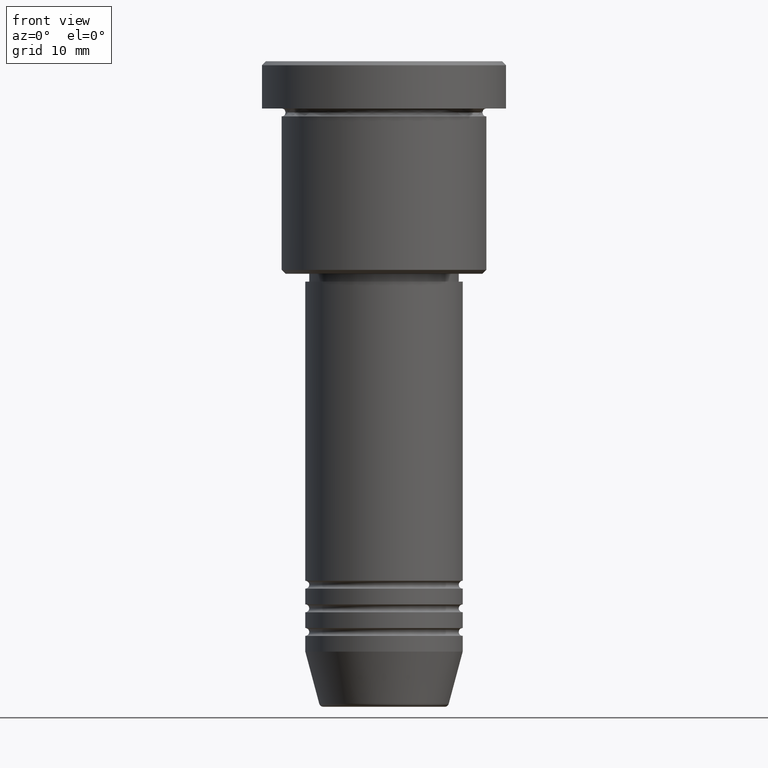
[diagram: clean part render]
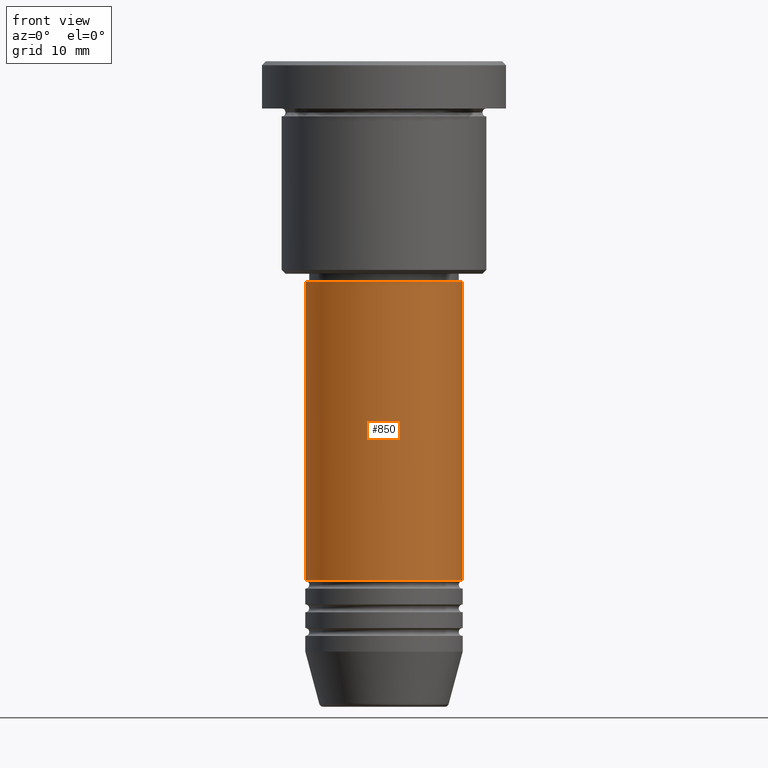
[diagram: same view with one face highlighted and labeled with its STEP entity id]
A machine part, front view. The second image highlights one B-rep face of the part: STEP entity #850.
In plain terms, the highlighted cylindrical surface (partial cylindrical patch) has radius 10 mm, axis along (-0, -0, 1).
Its self-contained STEP definition (entity closure, byte-faithful):
#69 = EDGE_CURVE ( 'NONE', #502, #199, #780, .T. ) ;
#164 = VECTOR ( 'NONE', #460, 1000.000000000000000 ) ;
#196 = LINE ( 'NONE', #646, #164 ) ;
#197 = DIRECTION ( 'NONE',  ( 1.000000000000000000, 0.000000000000000000, 0.000000000000000000 ) ) ;
#199 = VERTEX_POINT ( 'NONE', #999 ) ;
#215 = CARTESIAN_POINT ( 'NONE',  ( 0.000000000000000000, 0.000000000000000000, -27.99999999999998224 ) ) ;
#273 = ORIENTED_EDGE ( 'NONE', *, *, #693, .F. ) ;
#285 = VECTOR ( 'NONE', #1142, 1000.000000000000000 ) ;
#294 = VERTEX_POINT ( 'NONE', #755 ) ;
#362 = FACE_OUTER_BOUND ( 'NONE', #1068, .T. ) ;
#429 = ORIENTED_EDGE ( 'NONE', *, *, #69, .T. ) ;
#430 = VERTEX_POINT ( 'NONE', #606 ) ;
#460 = DIRECTION ( 'NONE',  ( -0.000000000000000000, -0.000000000000000000, 1.000000000000000000 ) ) ;
#502 = VERTEX_POINT ( 'NONE', #533 ) ;
#533 = CARTESIAN_POINT ( 'NONE',  ( 10.00000000000000000, 0.000000000000000000, -65.99999999999998579 ) ) ;
#547 = DIRECTION ( 'NONE',  ( 1.000000000000000000, 0.000000000000000000, 0.000000000000000000 ) ) ;
#594 = DIRECTION ( 'NONE',  ( 1.000000000000000000, 0.000000000000000000, 0.000000000000000000 ) ) ;
#606 = CARTESIAN_POINT ( 'NONE',  ( -10.00000000000000000, 1.224646799147353256E-15, -27.99999999999998224 ) ) ;
#637 = AXIS2_PLACEMENT_3D ( 'NONE', #215, #1033, #594 ) ;
#641 = EDGE_CURVE ( 'NONE', #294, #502, #1045, .T. ) ;
#646 = CARTESIAN_POINT ( 'NONE',  ( -10.00000000000000000, 1.224646799147353256E-15, 0.000000000000000000 ) ) ;
#657 = CARTESIAN_POINT ( 'NONE',  ( 0.000000000000000000, 0.000000000000000000, 0.000000000000000000 ) ) ;
#659 = CARTESIAN_POINT ( 'NONE',  ( 0.000000000000000000, 0.000000000000000000, -65.99999999999998579 ) ) ;
#693 = EDGE_CURVE ( 'NONE', #430, #199, #1122, .T. ) ;
#701 = CARTESIAN_POINT ( 'NONE',  ( 10.00000000000000000, 0.000000000000000000, 0.000000000000000000 ) ) ;
#755 = CARTESIAN_POINT ( 'NONE',  ( -10.00000000000000000, 1.224646799147353256E-15, -65.99999999999998579 ) ) ;
#780 = LINE ( 'NONE', #701, #285 ) ;
#812 = CYLINDRICAL_SURFACE ( 'NONE', #828, 10.00000000000000000 ) ;
#828 = AXIS2_PLACEMENT_3D ( 'NONE', #657, #1084, #547 ) ;
#850 = ADVANCED_FACE ( 'NONE', ( #362 ), #812, .T. ) ;
#865 = EDGE_CURVE ( 'NONE', #294, #430, #196, .T. ) ;
#973 = AXIS2_PLACEMENT_3D ( 'NONE', #659, #1011, #197 ) ;
#992 = ORIENTED_EDGE ( 'NONE', *, *, #865, .F. ) ;
#999 = CARTESIAN_POINT ( 'NONE',  ( 10.00000000000000000, 0.000000000000000000, -27.99999999999998224 ) ) ;
#1011 = DIRECTION ( 'NONE',  ( -0.000000000000000000, -0.000000000000000000, 1.000000000000000000 ) ) ;
#1033 = DIRECTION ( 'NONE',  ( -0.000000000000000000, -0.000000000000000000, 1.000000000000000000 ) ) ;
#1045 = CIRCLE ( 'NONE', #973, 10.00000000000000000 ) ;
#1068 = EDGE_LOOP ( 'NONE', ( #992, #1150, #429, #273 ) ) ;
#1084 = DIRECTION ( 'NONE',  ( -0.000000000000000000, -0.000000000000000000, 1.000000000000000000 ) ) ;
#1122 = CIRCLE ( 'NONE', #637, 10.00000000000000000 ) ;
#1142 = DIRECTION ( 'NONE',  ( -0.000000000000000000, -0.000000000000000000, 1.000000000000000000 ) ) ;
#1150 = ORIENTED_EDGE ( 'NONE', *, *, #641, .T. ) ;